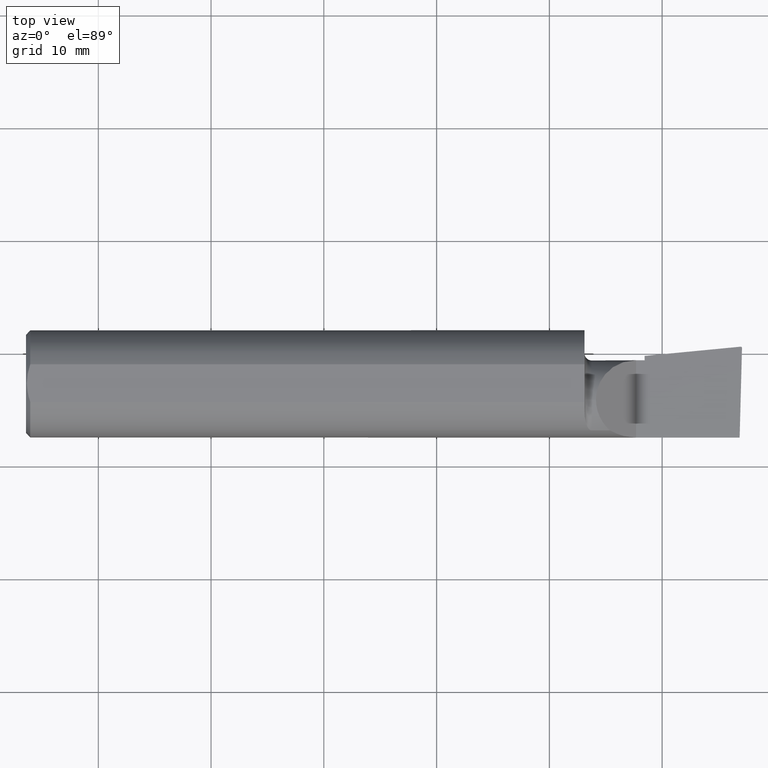
[diagram: clean part render]
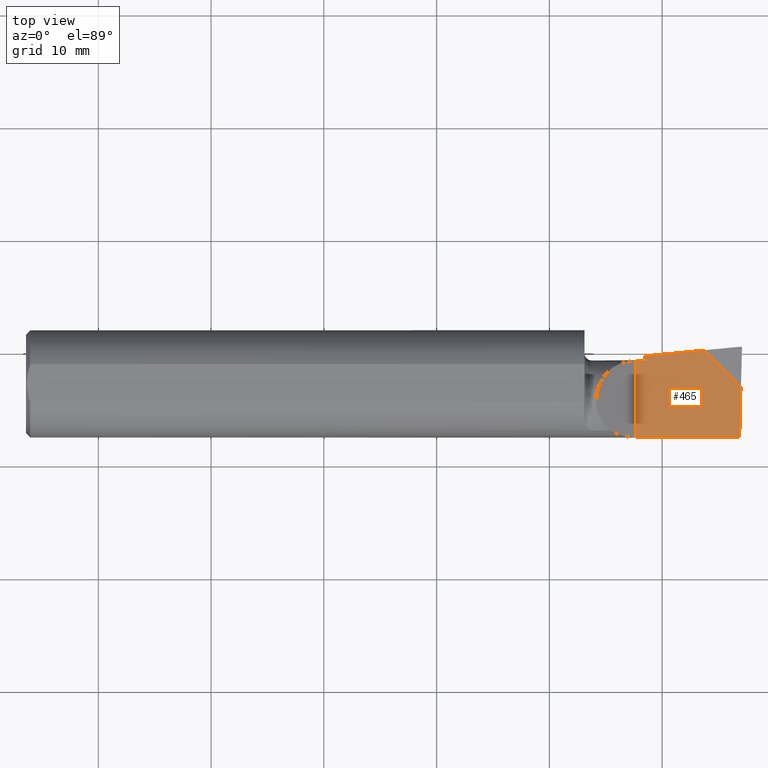
[diagram: same view with one face highlighted and labeled with its STEP entity id]
A machine part, top view. The second image highlights one B-rep face of the part: STEP entity #465.
In plain terms, the highlighted planar face has unit normal (0, 0, -1).
Its self-contained STEP definition (entity closure, byte-faithful):
#49 = CARTESIAN_POINT ( 'NONE',  ( 2.140015272976863780, 0.09598741326929116635, -5.122214988120493535E-17 ) ) ;
#79 = VERTEX_POINT ( 'NONE', #550 ) ;
#83 = VECTOR ( 'NONE', #146, 39.37007874015748143 ) ;
#84 = CARTESIAN_POINT ( 'NONE',  ( 2.129999999999999893, 0.2000000000000000389, -5.122214988120493535E-17 ) ) ;
#112 = ORIENTED_EDGE ( 'NONE', *, *, #129, .T. ) ;
#129 = EDGE_CURVE ( 'NONE', #547, #842, #1217, .T. ) ;
#135 = CARTESIAN_POINT ( 'NONE',  ( 2.129999999999999893, 0.2000000000000000389, -5.122214988120493535E-17 ) ) ;
#146 = DIRECTION ( 'NONE',  ( 1.000000000000000000, 0.000000000000000000, 0.000000000000000000 ) ) ;
#154 = DIRECTION ( 'NONE',  ( 0.02637339639457463719, 0.9996521614854912974, 0.000000000000000000 ) ) ;
#165 = CARTESIAN_POINT ( 'NONE',  ( 2.129999999999999893, -0.1873499999999999888, -5.122214988120493535E-17 ) ) ;
#219 = LINE ( 'NONE', #49, #603 ) ;
#270 = ORIENTED_EDGE ( 'NONE', *, *, #516, .F. ) ;
#271 = LINE ( 'NONE', #942, #730 ) ;
#313 = CARTESIAN_POINT ( 'NONE',  ( 2.500000000000000000, -0.1873499999999999888, -5.122214988120493535E-17 ) ) ;
#331 = LINE ( 'NONE', #313, #850 ) ;
#368 = CARTESIAN_POINT ( 'NONE',  ( 2.160000000000000142, 0.2000000000000000389, -5.122214988120493535E-17 ) ) ;
#375 = DIRECTION ( 'NONE',  ( 0.7071067811865437980, -0.7071067811865512365, 0.000000000000000000 ) ) ;
#413 = EDGE_LOOP ( 'NONE', ( #112, #533, #911, #994, #1045, #702, #270 ) ) ;
#419 = CARTESIAN_POINT ( 'NONE',  ( 2.160000000000000142, 0.08265000000000000124, -5.122214988120493535E-17 ) ) ;
#422 = PLANE ( 'NONE',  #849 ) ;
#448 = EDGE_CURVE ( 'NONE', #917, #1014, #219, .T. ) ;
#453 = LINE ( 'NONE', #368, #568 ) ;
#465 = ADVANCED_FACE ( 'NONE', ( #713 ), #422, .F. ) ;
#478 = EDGE_CURVE ( 'NONE', #79, #990, #1011, .T. ) ;
#508 = DIRECTION ( 'NONE',  ( -0.9953961983671786307, -0.09584575252022474456, 0.000000000000000000 ) ) ;
#516 = EDGE_CURVE ( 'NONE', #547, #579, #331, .T. ) ;
#533 = ORIENTED_EDGE ( 'NONE', *, *, #1210, .F. ) ;
#547 = VERTEX_POINT ( 'NONE', #1017 ) ;
#550 = CARTESIAN_POINT ( 'NONE',  ( 2.129999999999999893, 0.08265000000000000124, -5.122214988120493535E-17 ) ) ;
#568 = VECTOR ( 'NONE', #754, 39.37007874015748143 ) ;
#579 = VERTEX_POINT ( 'NONE', #165 ) ;
#603 = VECTOR ( 'NONE', #508, 39.37007874015748854 ) ;
#622 = DIRECTION ( 'NONE',  ( -1.000000000000000000, 0.000000000000000000, 0.000000000000000000 ) ) ;
#702 = ORIENTED_EDGE ( 'NONE', *, *, #856, .F. ) ;
#713 = FACE_OUTER_BOUND ( 'NONE', #413, .T. ) ;
#730 = VECTOR ( 'NONE', #375, 39.37007874015748143 ) ;
#743 = CARTESIAN_POINT ( 'NONE',  ( 2.501571003111213720, 0.1901970007855337819, -5.122214988120493535E-17 ) ) ;
#754 = DIRECTION ( 'NONE',  ( 0.000000000000000000, 1.000000000000000000, 0.000000000000000000 ) ) ;
#800 = CARTESIAN_POINT ( 'NONE',  ( 2.496272858460646837, -0.01062285846064830661, 0.000000000000000000 ) ) ;
#801 = DIRECTION ( 'NONE',  ( -1.000000000000000000, -0.000000000000000000, -0.000000000000000000 ) ) ;
#842 = VERTEX_POINT ( 'NONE', #800 ) ;
#849 = AXIS2_PLACEMENT_3D ( 'NONE', #135, #989, #622 ) ;
#850 = VECTOR ( 'NONE', #801, 39.37007874015748143 ) ;
#856 = EDGE_CURVE ( 'NONE', #579, #79, #1148, .T. ) ;
#889 = VECTOR ( 'NONE', #953, 39.37007874015748143 ) ;
#902 = CARTESIAN_POINT ( 'NONE',  ( 1.949999999999999956, 0.08265000000000000124, -5.122214988120493535E-17 ) ) ;
#911 = ORIENTED_EDGE ( 'NONE', *, *, #448, .T. ) ;
#917 = VERTEX_POINT ( 'NONE', #1193 ) ;
#942 = CARTESIAN_POINT ( 'NONE',  ( 2.354999999999999982, 0.1306500000000000161, 0.000000000000000000 ) ) ;
#953 = DIRECTION ( 'NONE',  ( -0.000000000000000000, 1.000000000000000000, -0.000000000000000000 ) ) ;
#989 = DIRECTION ( 'NONE',  ( -0.000000000000000000, 0.000000000000000000, -1.000000000000000000 ) ) ;
#990 = VERTEX_POINT ( 'NONE', #419 ) ;
#994 = ORIENTED_EDGE ( 'NONE', *, *, #1205, .F. ) ;
#1011 = LINE ( 'NONE', #902, #83 ) ;
#1014 = VERTEX_POINT ( 'NONE', #1103 ) ;
#1017 = CARTESIAN_POINT ( 'NONE',  ( 2.491610341700249531, -0.1873500000000000165, -1.707404996040164512E-17 ) ) ;
#1045 = ORIENTED_EDGE ( 'NONE', *, *, #478, .F. ) ;
#1103 = CARTESIAN_POINT ( 'NONE',  ( 2.160000000000000142, 0.09791172361283662084, -5.122214988120493535E-17 ) ) ;
#1148 = LINE ( 'NONE', #84, #889 ) ;
#1193 = CARTESIAN_POINT ( 'NONE',  ( 2.367735612028231795, 0.1179143879717683835, 0.000000000000000000 ) ) ;
#1205 = EDGE_CURVE ( 'NONE', #990, #1014, #453, .T. ) ;
#1210 = EDGE_CURVE ( 'NONE', #917, #842, #271, .T. ) ;
#1217 = LINE ( 'NONE', #743, #1252 ) ;
#1252 = VECTOR ( 'NONE', #154, 39.37007874015748143 ) ;